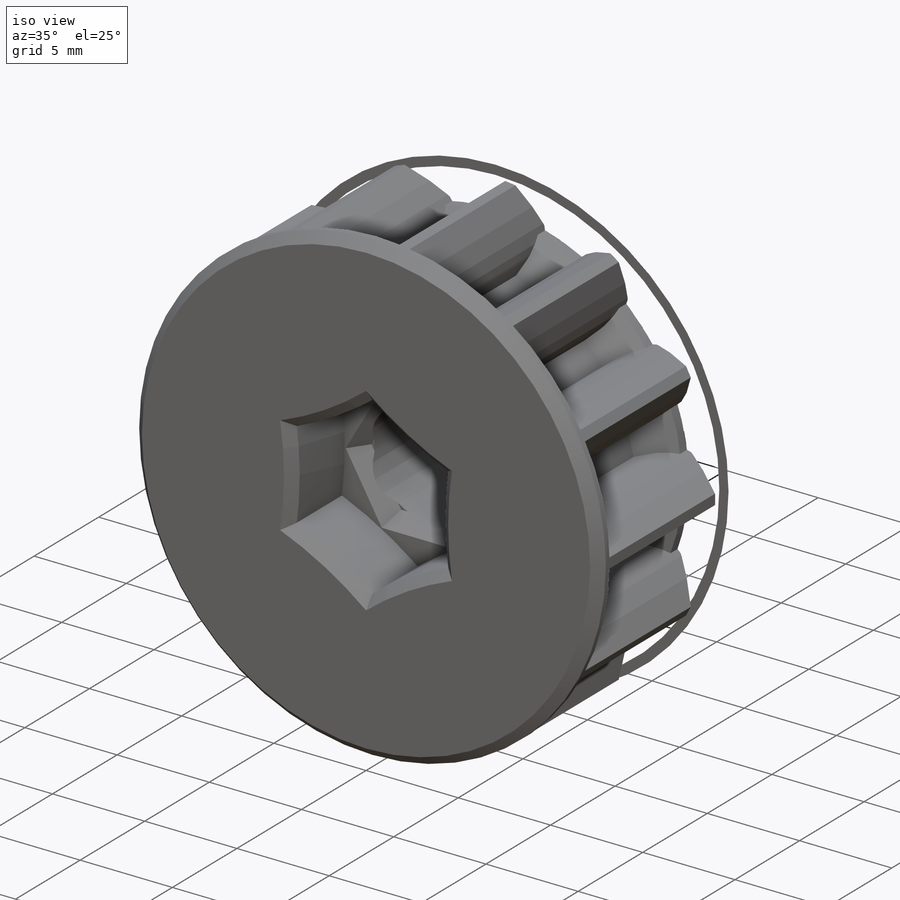
[diagram: iso view]
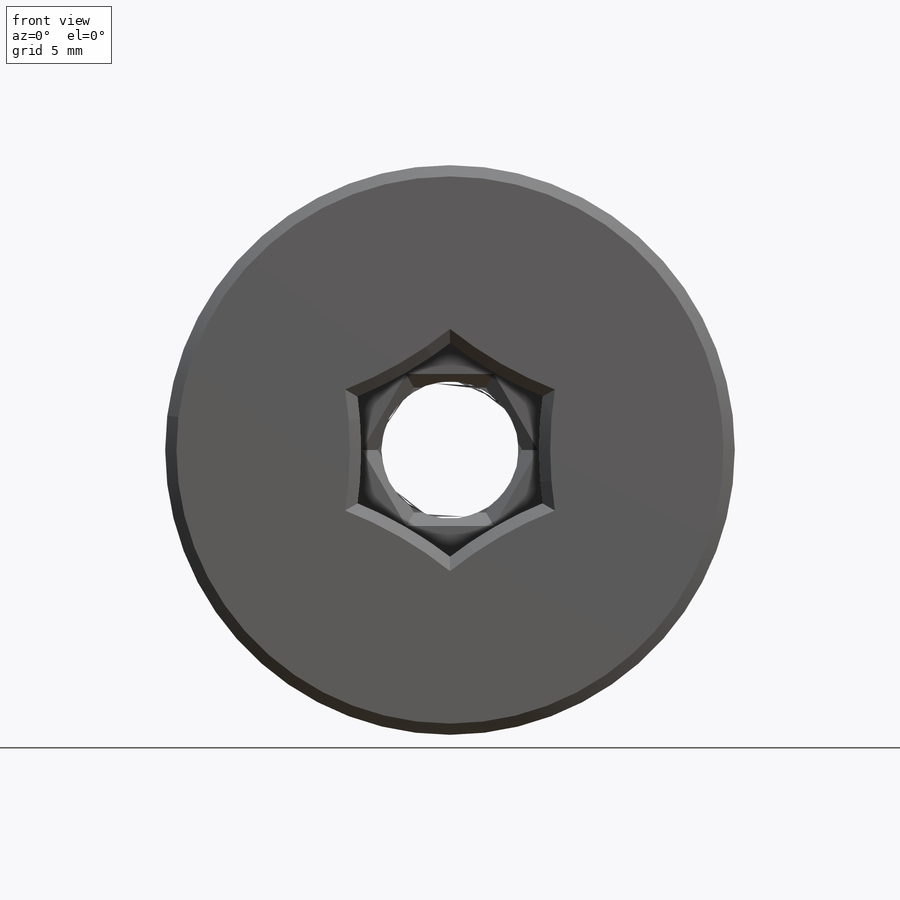
[diagram: front view]
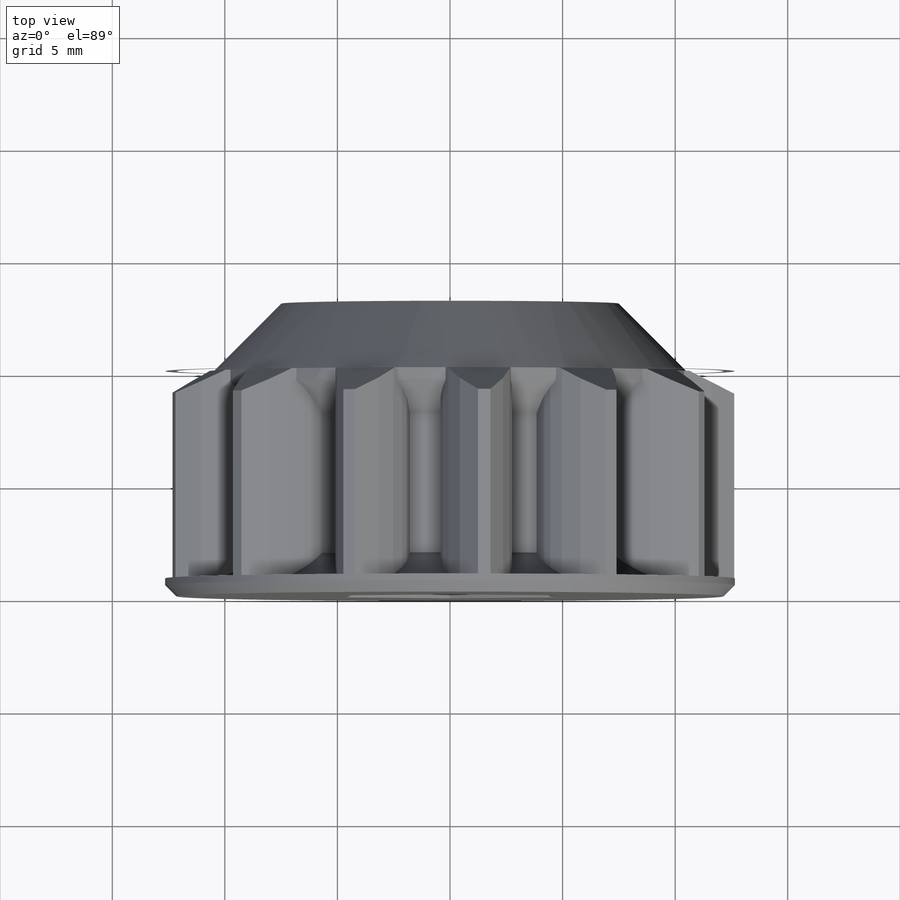
[diagram: top view]
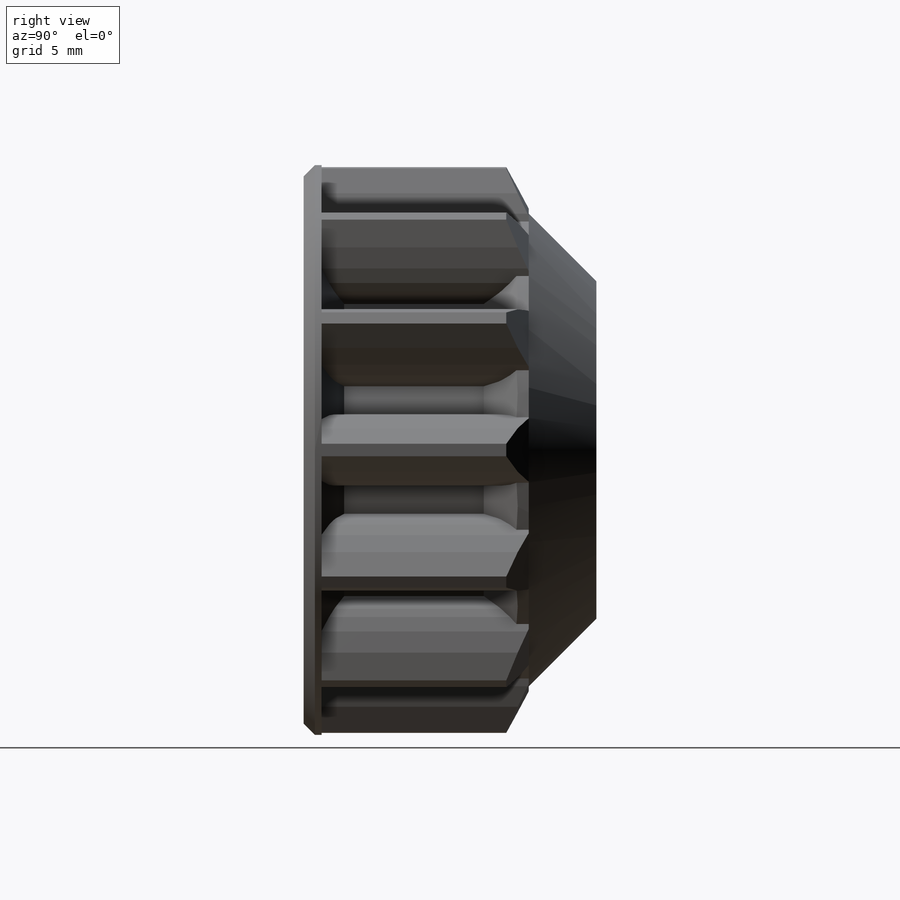
[diagram: right view]
SOLIDWORKS PART (.sldprt)
format: sldprt  version: not decoded by parser v0  size: 890,880 bytes
history: native  units: mm
features: sketch x7, chamfer x7, cut_extrude x4, extrude x3, material x1 (+13 scaffold rows collapsed)
feature tree (35):
  scaffold x13  (default folders/planes/origin — collapsed)
  material  "Custom Plastic"
  sketch  "Model"  dims[D1=3.0mm D2=12.622mm D3=0.554mm D4=2.942mm D5=3.152mm D6=3.166mm D7=3.086mm D8=2.732mm D9=1.936mm D10=8.899mm D11=9.532mm D12=9.668mm D13=10.076mm D14=10.735mm D15=11.605mm]
  extrude  "Boss-Extrude1"  Depth=10mm
  sketch  "Sketch1"  dims[D1=21.0mm]
  extrude  "Boss-Extrude2"  Depth=3mm
  sketch  "Sketch6"  dims[D1=25.3mm]
  extrude  "Boss-Extrude3"  Depth=0.8mm
  chamfer  "Chamfer1"  Distance=2mm
  sketch  "Sketch2"  dims[D1=6.1mm]
  cut_extrude  "Cut-Extrude1"  [1 undecoded]
  sketch  "Sketch3"  dims[D1=10.1mm]
  cut_extrude  "Cut-Extrude2"  Depth=4mm
  sketch  "Sketch4"  dims[D1=7.8mm]
  cut_extrude  "Cut-Extrude3"  Depth=4mm
  sketch  "Sketch5"  dims[D1=7.9mm D3=22.0mm D2=6.0]
  cut_extrude  "Cut-Extrude4"  Depth=4mm
  chamfer  "Chamfer4"  Distance=3mm Angle=45deg
  chamfer  "Chamfer5"  Distance=2mm
  chamfer  "Chamfer6"  Distance=0.5mm Angle=45deg
  chamfer  "Chamfer7"  Distance=1mm Angle=60deg
  chamfer  "Chamfer8"  Distance=1mm
  chamfer  "Chamfer9"  Distance=0.5mm Angle=45deg
decode coverage: 20 of 21 modeling features carry decoded parameters
note: 1 parameter value undecoded
note: suppression state not decoded; provenance and decode notes live in map.json
